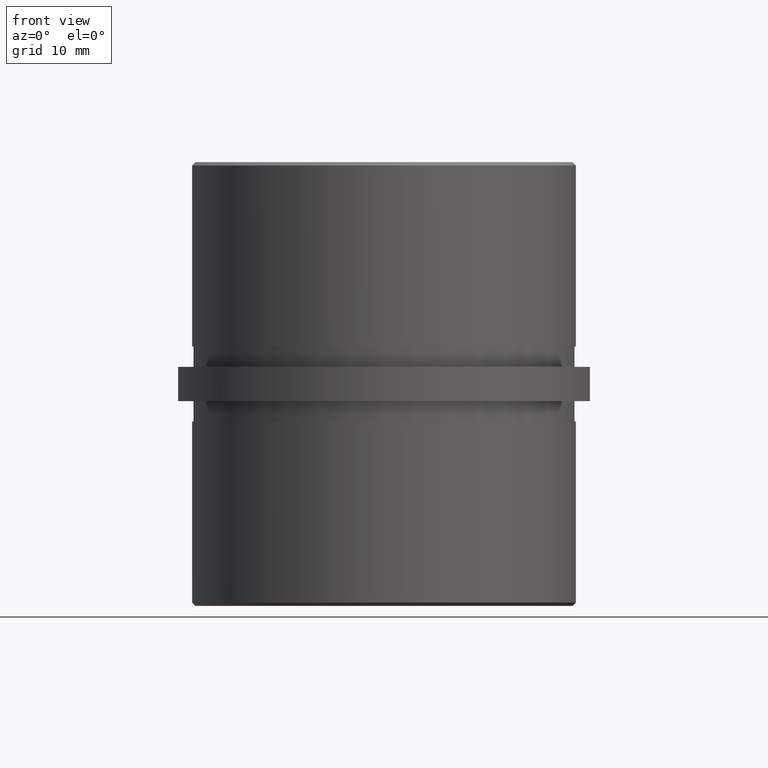
[diagram: clean part render]
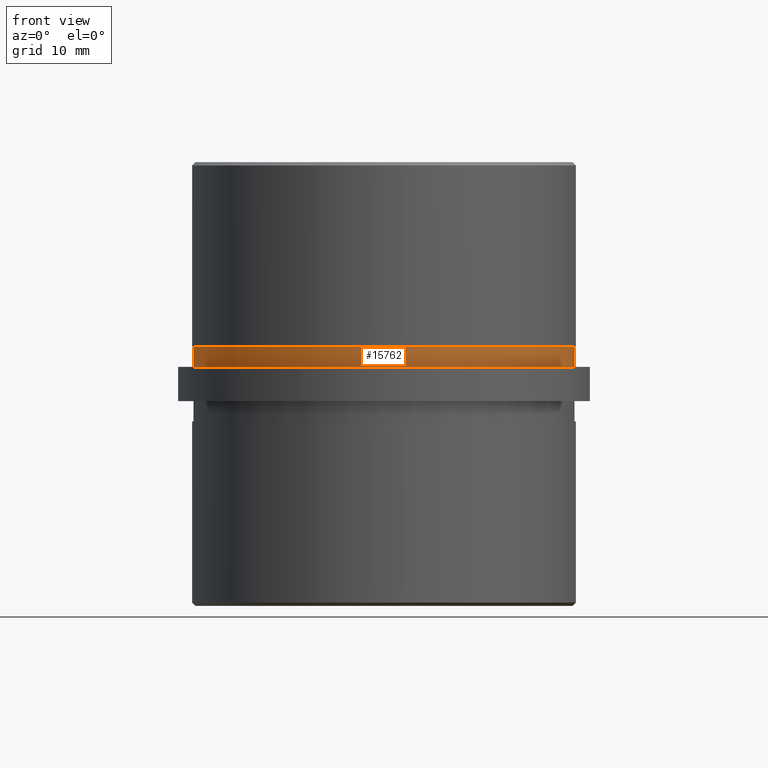
[diagram: same view with one face highlighted and labeled with its STEP entity id]
A machine part, front view. The second image highlights one B-rep face of the part: STEP entity #15762.
In plain terms, the highlighted cylindrical surface (partial cylindrical patch) has radius 27.9 mm, axis along (-0, -0, -1).
Its self-contained STEP definition (entity closure, byte-faithful):
#891 = CARTESIAN_POINT ( 'NONE',  ( 27.89999999999999900, 3.416764569621115100E-015, 5.500000000000000000 ) ) ;
#1284 = ORIENTED_EDGE ( 'NONE', *, *, #18107, .F. ) ;
#1382 = DIRECTION ( 'NONE',  ( -0.0000000000000000000, -0.0000000000000000000, -1.000000000000000000 ) ) ;
#1578 = DIRECTION ( 'NONE',  ( -0.0000000000000000000, -0.0000000000000000000, -1.000000000000000000 ) ) ;
#1729 = ORIENTED_EDGE ( 'NONE', *, *, #15378, .T. ) ;
#2134 = LINE ( 'NONE', #16718, #20922 ) ;
#2370 = LINE ( 'NONE', #891, #19548 ) ;
#4267 = FACE_OUTER_BOUND ( 'NONE', #12885, .T. ) ;
#4661 = CARTESIAN_POINT ( 'NONE',  ( 0.0000000000000000000, 0.0000000000000000000, 5.500000000000000000 ) ) ;
#5279 = DIRECTION ( 'NONE',  ( 0.0000000000000000000, 0.0000000000000000000, 1.000000000000000000 ) ) ;
#6094 = CARTESIAN_POINT ( 'NONE',  ( 27.89999999999999900, 3.416764569621115100E-015, 2.500000000000000000 ) ) ;
#6409 = VERTEX_POINT ( 'NONE', #7385 ) ;
#6642 = DIRECTION ( 'NONE',  ( -1.000000000000000000, 0.0000000000000000000, 0.0000000000000000000 ) ) ;
#6821 = DIRECTION ( 'NONE',  ( 1.000000000000000000, 0.0000000000000000000, 0.0000000000000000000 ) ) ;
#7268 = ORIENTED_EDGE ( 'NONE', *, *, #8652, .T. ) ;
#7385 = CARTESIAN_POINT ( 'NONE',  ( -27.89999999999999900, 0.0000000000000000000, 2.500000000000000000 ) ) ;
#7946 = DIRECTION ( 'NONE',  ( 0.0000000000000000000, 0.0000000000000000000, 1.000000000000000000 ) ) ;
#8223 = VERTEX_POINT ( 'NONE', #18440 ) ;
#8652 = EDGE_CURVE ( 'NONE', #13679, #6409, #2134, .T. ) ;
#9520 = CARTESIAN_POINT ( 'NONE',  ( -27.89999999999999900, 0.0000000000000000000, 5.500000000000000000 ) ) ;
#9605 = CARTESIAN_POINT ( 'NONE',  ( 0.0000000000000000000, 0.0000000000000000000, 5.500000000000000000 ) ) ;
#11382 = AXIS2_PLACEMENT_3D ( 'NONE', #15394, #5279, #6821 ) ;
#12492 = AXIS2_PLACEMENT_3D ( 'NONE', #4661, #1382, #6642 ) ;
#12817 = DIRECTION ( 'NONE',  ( 1.000000000000000000, 0.0000000000000000000, 0.0000000000000000000 ) ) ;
#12885 = EDGE_LOOP ( 'NONE', ( #1284, #21547, #7268, #1729 ) ) ;
#13679 = VERTEX_POINT ( 'NONE', #9520 ) ;
#14126 = CYLINDRICAL_SURFACE ( 'NONE', #12492, 27.89999999999999900 ) ;
#14239 = DIRECTION ( 'NONE',  ( -0.0000000000000000000, -0.0000000000000000000, -1.000000000000000000 ) ) ;
#15378 = EDGE_CURVE ( 'NONE', #6409, #20917, #18398, .T. ) ;
#15394 = CARTESIAN_POINT ( 'NONE',  ( 0.0000000000000000000, 0.0000000000000000000, 2.500000000000000000 ) ) ;
#15605 = CIRCLE ( 'NONE', #19256, 27.89999999999999900 ) ;
#15762 = ADVANCED_FACE ( 'NONE', ( #4267 ), #14126, .T. ) ;
#16718 = CARTESIAN_POINT ( 'NONE',  ( -27.89999999999999900, 0.0000000000000000000, 5.500000000000000000 ) ) ;
#18107 = EDGE_CURVE ( 'NONE', #8223, #20917, #2370, .T. ) ;
#18398 = CIRCLE ( 'NONE', #11382, 27.89999999999999900 ) ;
#18440 = CARTESIAN_POINT ( 'NONE',  ( 27.89999999999999900, 3.416764569621115100E-015, 5.500000000000000000 ) ) ;
#19256 = AXIS2_PLACEMENT_3D ( 'NONE', #9605, #7946, #12817 ) ;
#19548 = VECTOR ( 'NONE', #14239, 1000.000000000000000 ) ;
#20423 = EDGE_CURVE ( 'NONE', #13679, #8223, #15605, .T. ) ;
#20917 = VERTEX_POINT ( 'NONE', #6094 ) ;
#20922 = VECTOR ( 'NONE', #1578, 1000.000000000000000 ) ;
#21547 = ORIENTED_EDGE ( 'NONE', *, *, #20423, .F. ) ;